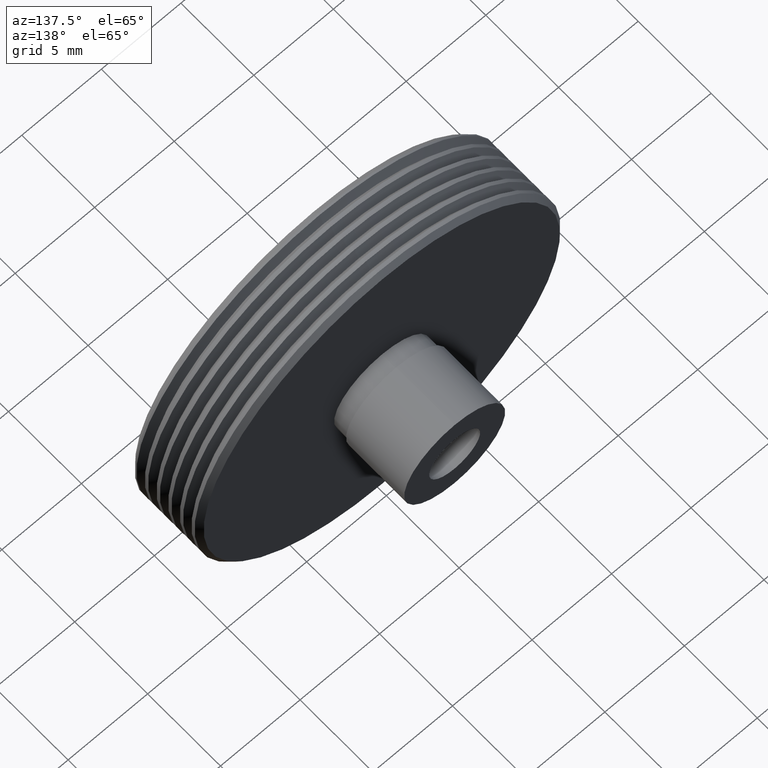
[diagram: clean part render]
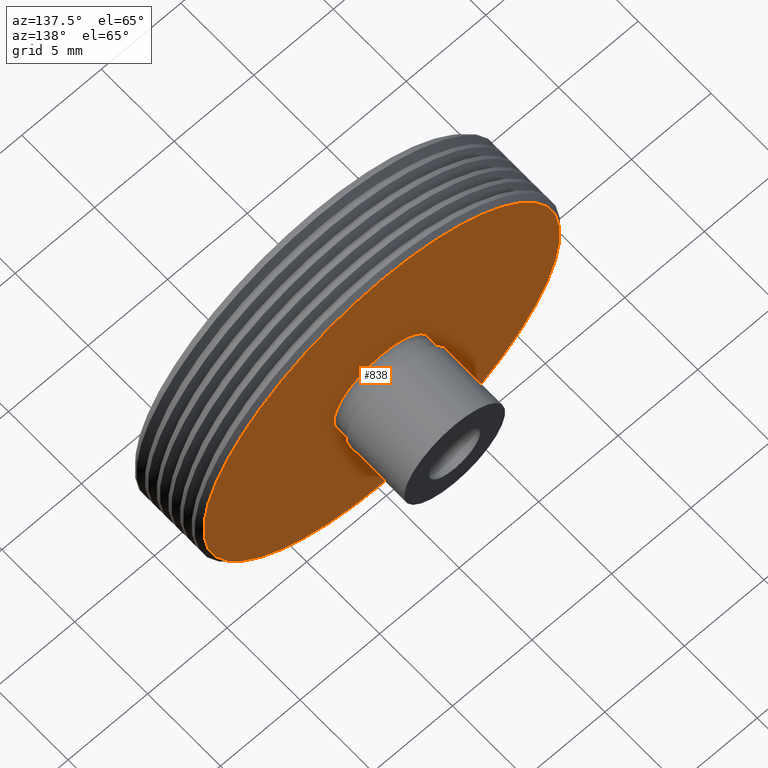
[diagram: same view with one face highlighted and labeled with its STEP entity id]
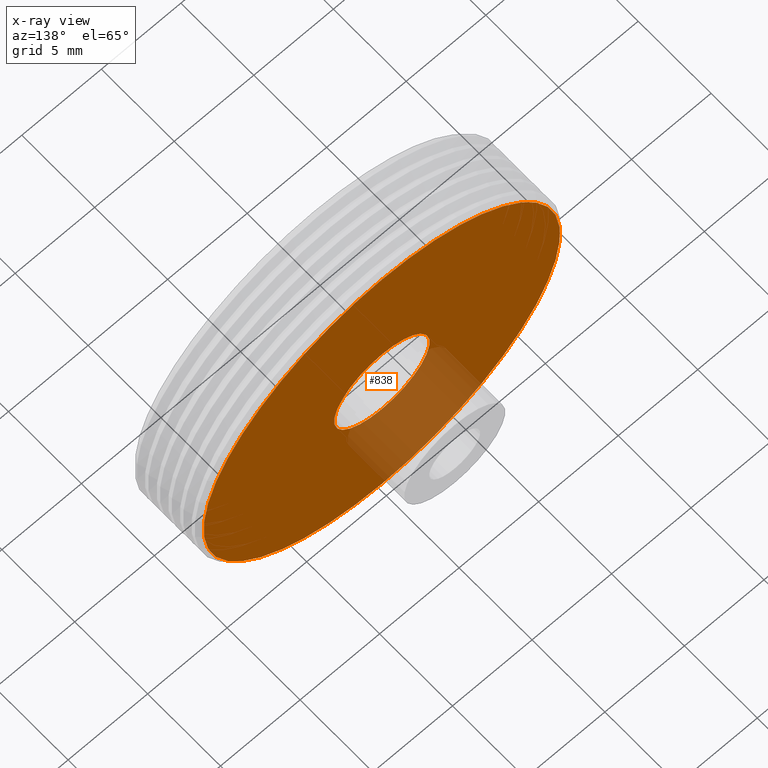
[diagram: x-ray of the same camera — body ghosted, the highlighted face saturated]
A machine part, auxiliary view. The second image highlights one B-rep face of the part: STEP entity #838.
The next image is the same camera in x-ray: the body ghosted, the highlighted face saturated — about 15% of this face is hidden behind the body in this view.
In plain terms, the highlighted planar face has unit normal (0, -1, 0).
Its self-contained STEP definition (entity closure, byte-faithful):
#12 = VERTEX_POINT ( 'NONE', #717 ) ;
#30 = EDGE_CURVE ( 'NONE', #670, #727, #479, .T. ) ;
#42 = CIRCLE ( 'NONE', #703, 3.000000000000004400 ) ;
#81 = CIRCLE ( 'NONE', #865, 11.20000000000001000 ) ;
#96 = EDGE_CURVE ( 'NONE', #12, #320, #42, .T. ) ;
#179 = CARTESIAN_POINT ( 'NONE',  ( 4.525000000000003000, 4.699999999999999300, 0.0000000000000000000 ) ) ;
#189 = EDGE_LOOP ( 'NONE', ( #510, #624 ) ) ;
#208 = FACE_OUTER_BOUND ( 'NONE', #507, .T. ) ;
#270 = CARTESIAN_POINT ( 'NONE',  ( 0.0000000000000000000, 4.699999999999995700, 0.0000000000000000000 ) ) ;
#312 = CARTESIAN_POINT ( 'NONE',  ( 0.0000000000000000000, 4.699999999999999300, 0.0000000000000000000 ) ) ;
#320 = VERTEX_POINT ( 'NONE', #466 ) ;
#360 = DIRECTION ( 'NONE',  ( 0.0000000000000000000, -0.0000000000000000000, -1.000000000000000000 ) ) ;
#375 = AXIS2_PLACEMENT_3D ( 'NONE', #179, #580, #360 ) ;
#406 = FACE_BOUND ( 'NONE', #189, .T. ) ;
#435 = CARTESIAN_POINT ( 'NONE',  ( 0.0000000000000000000, 4.699999999999999300, 0.0000000000000000000 ) ) ;
#445 = CARTESIAN_POINT ( 'NONE',  ( 1.389974117032246700E-015, 4.699999999999999300, 11.20000000000001000 ) ) ;
#459 = CARTESIAN_POINT ( 'NONE',  ( 0.0000000000000000000, 4.699999999999995700, 0.0000000000000000000 ) ) ;
#466 = CARTESIAN_POINT ( 'NONE',  ( 0.0000000000000000000, 4.699999999999995700, 3.000000000000004400 ) ) ;
#470 = ORIENTED_EDGE ( 'NONE', *, *, #30, .T. ) ;
#479 = CIRCLE ( 'NONE', #489, 11.20000000000001000 ) ;
#487 = DIRECTION ( 'NONE',  ( -0.0000000000000000000, 1.000000000000000000, -0.0000000000000000000 ) ) ;
#489 = AXIS2_PLACEMENT_3D ( 'NONE', #312, #908, #615 ) ;
#507 = EDGE_LOOP ( 'NONE', ( #1205, #470 ) ) ;
#510 = ORIENTED_EDGE ( 'NONE', *, *, #804, .F. ) ;
#548 = DIRECTION ( 'NONE',  ( 0.0000000000000000000, 0.0000000000000000000, 1.000000000000000000 ) ) ;
#580 = DIRECTION ( 'NONE',  ( 0.0000000000000000000, -1.000000000000000000, 0.0000000000000000000 ) ) ;
#615 = DIRECTION ( 'NONE',  ( 0.0000000000000000000, 0.0000000000000000000, -1.000000000000000000 ) ) ;
#624 = ORIENTED_EDGE ( 'NONE', *, *, #96, .F. ) ;
#670 = VERTEX_POINT ( 'NONE', #445 ) ;
#703 = AXIS2_PLACEMENT_3D ( 'NONE', #459, #743, #548 ) ;
#717 = CARTESIAN_POINT ( 'NONE',  ( 3.673940397442064800E-016, 4.699999999999995700, -3.000000000000004400 ) ) ;
#726 = CARTESIAN_POINT ( 'NONE',  ( 0.0000000000000000000, 4.699999999999999300, -11.20000000000001000 ) ) ;
#727 = VERTEX_POINT ( 'NONE', #726 ) ;
#743 = DIRECTION ( 'NONE',  ( -0.0000000000000000000, 1.000000000000000000, -0.0000000000000000000 ) ) ;
#751 = PLANE ( 'NONE',  #375 ) ;
#797 = CIRCLE ( 'NONE', #1124, 3.000000000000004400 ) ;
#804 = EDGE_CURVE ( 'NONE', #320, #12, #797, .T. ) ;
#838 = ADVANCED_FACE ( 'NONE', ( #208, #406 ), #751, .F. ) ;
#865 = AXIS2_PLACEMENT_3D ( 'NONE', #435, #1213, #1113 ) ;
#875 = DIRECTION ( 'NONE',  ( 0.0000000000000000000, 0.0000000000000000000, 1.000000000000000000 ) ) ;
#908 = DIRECTION ( 'NONE',  ( -0.0000000000000000000, 1.000000000000000000, -0.0000000000000000000 ) ) ;
#1113 = DIRECTION ( 'NONE',  ( 0.0000000000000000000, 0.0000000000000000000, -1.000000000000000000 ) ) ;
#1124 = AXIS2_PLACEMENT_3D ( 'NONE', #270, #487, #875 ) ;
#1161 = EDGE_CURVE ( 'NONE', #727, #670, #81, .T. ) ;
#1205 = ORIENTED_EDGE ( 'NONE', *, *, #1161, .T. ) ;
#1213 = DIRECTION ( 'NONE',  ( -0.0000000000000000000, 1.000000000000000000, -0.0000000000000000000 ) ) ;